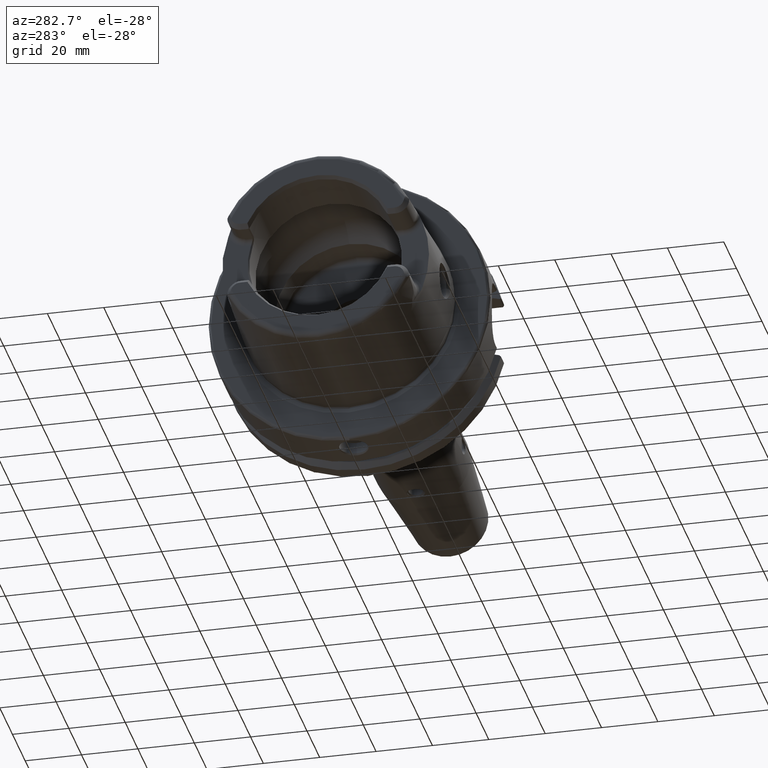
[diagram: clean part render]
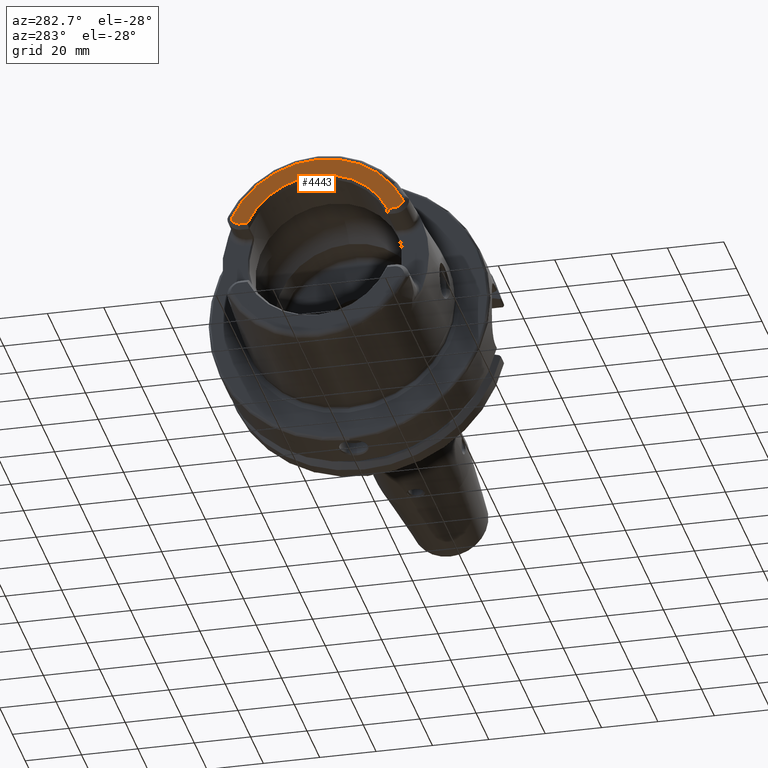
[diagram: same view with one face highlighted and labeled with its STEP entity id]
A machine part, auxiliary view. The second image highlights one B-rep face of the part: STEP entity #4443.
In plain terms, the highlighted planar face has unit normal (1, 0, 0).
Its self-contained STEP definition (entity closure, byte-faithful):
#851=CARTESIAN_POINT('',(-5.E1,2.737E1,1.489E1));
#852=DIRECTION('',(1.E0,0.E0,0.E0));
#853=DIRECTION('',(0.E0,-1.681757954462E-14,-1.E0));
#854=AXIS2_PLACEMENT_3D('',#851,#852,#853);
#856=CARTESIAN_POINT('',(-5.E1,0.E0,0.E0));
#857=DIRECTION('',(1.E0,0.E0,0.E0));
#858=DIRECTION('',(0.E0,9.107116187708E-1,4.130427912891E-1));
#859=AXIS2_PLACEMENT_3D('',#856,#857,#858);
#861=CARTESIAN_POINT('',(-5.E1,-2.737E1,1.489E1));
#862=DIRECTION('',(1.E0,0.E0,0.E0));
#863=DIRECTION('',(0.E0,-9.539066199006E-1,-3.001035829673E-1));
#864=AXIS2_PLACEMENT_3D('',#861,#862,#863);
#866=DIRECTION('',(3.074480736451E-14,1.E0,-3.493728109604E-13));
#867=VECTOR('',#866,2.542208185172E0);
#868=CARTESIAN_POINT('',(-5.E1,-2.737E1,1.151E1));
#869=LINE('',#868,#867);
#870=CARTESIAN_POINT('',(-5.E1,-2.664535259100E-14,0.E0));
#871=DIRECTION('',(-1.E0,0.E0,0.E0));
#872=DIRECTION('',(0.E0,-9.072487308075E-1,4.205945083428E-1));
#873=AXIS2_PLACEMENT_3D('',#870,#871,#872);
#875=CARTESIAN_POINT('',(-5.E1,-2.664535259100E-14,0.E0));
#876=DIRECTION('',(-1.E0,0.E0,0.E0));
#877=DIRECTION('',(0.E0,0.E0,1.E0));
#878=AXIS2_PLACEMENT_3D('',#875,#876,#877);
#880=DIRECTION('',(3.074480736451E-14,-1.E0,-3.521677934481E-13));
#881=VECTOR('',#880,2.542208185172E0);
#882=CARTESIAN_POINT('',(-5.E1,2.737E1,1.151E1));
#883=LINE('',#882,#881);
#3138=CARTESIAN_POINT('',(-5.E1,2.737E1,1.151E1));
#3139=CARTESIAN_POINT('',(-5.E1,2.482779181483E1,1.151E1));
#3140=VERTEX_POINT('',#3138);
#3141=VERTEX_POINT('',#3139);
#3142=CARTESIAN_POINT('',(-5.E1,3.059420437526E1,1.387564988957E1));
#3143=VERTEX_POINT('',#3142);
#3144=CARTESIAN_POINT('',(-5.E1,-3.059420437526E1,1.387564988957E1));
#3145=VERTEX_POINT('',#3144);
#3146=CARTESIAN_POINT('',(-5.E1,-2.737E1,1.151E1));
#3147=VERTEX_POINT('',#3146);
#3148=CARTESIAN_POINT('',(-5.E1,-2.482779181483E1,1.151E1));
#3149=VERTEX_POINT('',#3148);
#3150=CARTESIAN_POINT('',(-5.E1,-4.841869805703E-14,2.736602540378E1));
#3151=VERTEX_POINT('',#3150);
#4424=CARTESIAN_POINT('',(-5.E1,0.E0,0.E0));
#4425=DIRECTION('',(1.E0,0.E0,0.E0));
#4426=DIRECTION('',(0.E0,0.E0,1.E0));
#4427=AXIS2_PLACEMENT_3D('',#4424,#4425,#4426);
#4428=PLANE('',#4427);
#4430=ORIENTED_EDGE('',*,*,#4429,.F.);
#4432=ORIENTED_EDGE('',*,*,#4431,.T.);
#4434=ORIENTED_EDGE('',*,*,#4433,.T.);
#4435=ORIENTED_EDGE('',*,*,#4415,.T.);
#4436=ORIENTED_EDGE('',*,*,#4404,.T.);
#4438=ORIENTED_EDGE('',*,*,#4437,.T.);
#4440=ORIENTED_EDGE('',*,*,#4439,.T.);
#4441=EDGE_LOOP('',(#4430,#4432,#4434,#4435,#4436,#4438,#4440));
#4442=FACE_OUTER_BOUND('',#4441,.F.);
#4443=ADVANCED_FACE('',(#4442),#4428,.F.);
#855=CIRCLE('',#854,3.38E0);
#860=CIRCLE('',#859,3.359373455294E1);
#865=CIRCLE('',#864,3.38E0);
#874=CIRCLE('',#873,2.736602540378E1);
#879=CIRCLE('',#878,2.736602540378E1);
#4404=EDGE_CURVE('',#3147,#3149,#869,.T.);
#4415=EDGE_CURVE('',#3145,#3147,#865,.T.);
#4429=EDGE_CURVE('',#3140,#3141,#883,.T.);
#4431=EDGE_CURVE('',#3140,#3143,#855,.T.);
#4433=EDGE_CURVE('',#3143,#3145,#860,.T.);
#4437=EDGE_CURVE('',#3149,#3151,#874,.T.);
#4439=EDGE_CURVE('',#3151,#3141,#879,.T.);